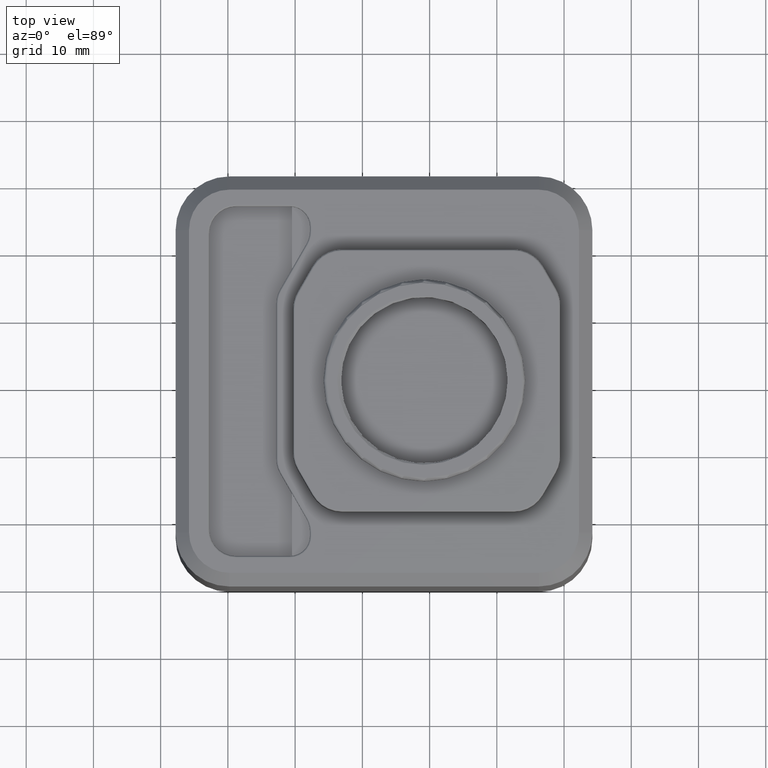
[diagram: clean part render]
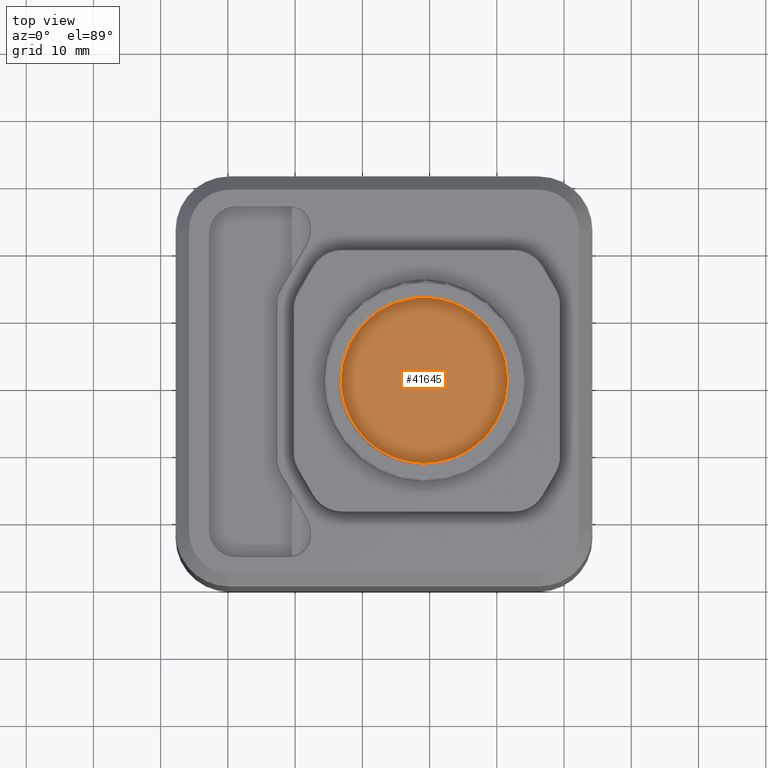
[diagram: same view with one face highlighted and labeled with its STEP entity id]
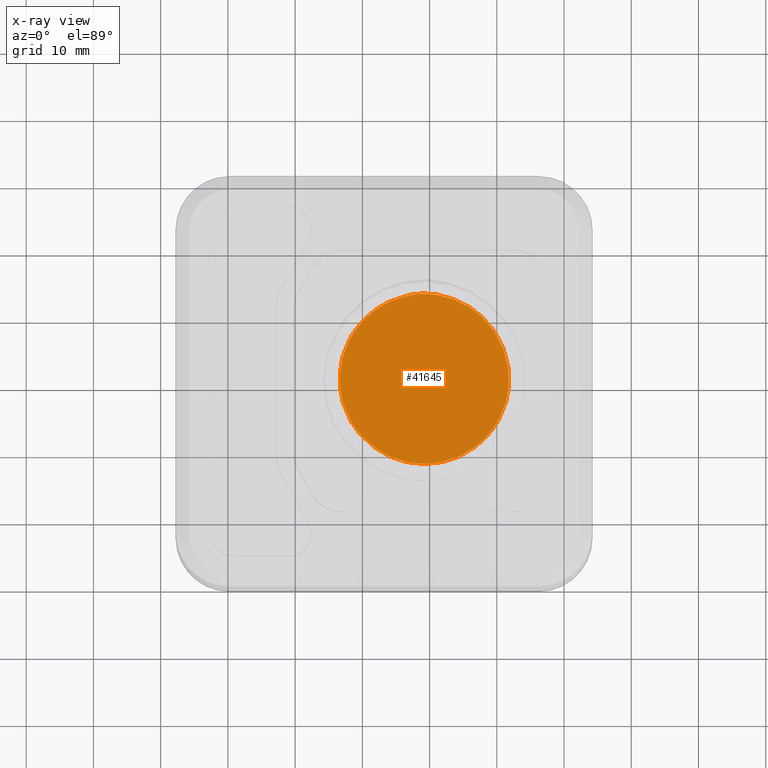
[diagram: x-ray of the same camera — body ghosted, the highlighted face saturated]
A machine part, top view. The second image highlights one B-rep face of the part: STEP entity #41645.
The next image is the same camera in x-ray: the body ghosted, the highlighted face saturated — about 0% of this face is hidden behind the body in this view.
In plain terms, the highlighted planar face has unit normal (0, 0, -1).
Its self-contained STEP definition (entity closure, byte-faithful):
#297 = CARTESIAN_POINT ( 'NONE',  ( 31.82309524711892479, 20.74519553702214480, 39.58307477415577580 ) ) ;
#442 = CARTESIAN_POINT ( 'NONE',  ( 15.31156045680476652, 32.63745013328001221, 39.58307532106147164 ) ) ;
#666 = CARTESIAN_POINT ( 'NONE',  ( 26.60642328397399581, 30.83139981985038958, 39.58307525200874011 ) ) ;
#813 = CARTESIAN_POINT ( 'NONE',  ( 11.81525791488999921, 30.81963189116436652, 39.58307532113814631 ) ) ;
#1029 = CARTESIAN_POINT ( 'NONE',  ( 26.56612655658900479, 30.86078092087142011, 39.58307288300546389 ) ) ;
#1396 = CARTESIAN_POINT ( 'NONE',  ( 28.10753219452592688, 29.54467523132464990, 39.58307532091844649 ) ) ;
#1761 = CARTESIAN_POINT ( 'NONE',  ( 30.20758540288496619, 14.40774100040227346, 39.58292846182003188 ) ) ;
#1988 = CARTESIAN_POINT ( 'NONE',  ( 10.29460534919478576, 11.70433916191642254, 39.58307480405398593 ) ) ;
#2117 = CARTESIAN_POINT ( 'NONE',  ( 28.21131358985558890, 11.77279022986245671, 39.58307529018049564 ) ) ;
#2352 = CARTESIAN_POINT ( 'NONE',  ( 10.54596359788703452, 11.46036815941908849, 39.58303727257135307 ) ) ;
#2479 = CARTESIAN_POINT ( 'NONE',  ( 31.76666478938085092, 19.32918123646492603, 39.58320884384016125 ) ) ;
#2714 = CARTESIAN_POINT ( 'NONE',  ( 7.409811808968974844, 16.17391672029135918, 39.58309431045019267 ) ) ;
#2839 = CARTESIAN_POINT ( 'NONE',  ( 31.81457887324661726, 19.98313738439653520, 39.58316871722408337 ) ) ;
#3069 = CARTESIAN_POINT ( 'NONE',  ( 10.32592943123403018, 11.67319117910058779, 39.58307325766346452 ) ) ;
#3197 = CARTESIAN_POINT ( 'NONE',  ( 29.01918773677619967, 12.66678435022230964, 39.58307349508761774 ) ) ;
#3424 = CARTESIAN_POINT ( 'NONE',  ( 9.995089806463630211, 29.19690334963930667, 39.58303949159650870 ) ) ;
#3788 = CARTESIAN_POINT ( 'NONE',  ( 6.634918845543139376, 19.82324906734761072, 39.58296970877445631 ) ) ;
#4163 = CARTESIAN_POINT ( 'NONE',  ( 8.092704202161462135, 26.52656563495869335, 39.58299219877280706 ) ) ;
#4377 = CARTESIAN_POINT ( 'NONE',  ( 21.31104860469303475, 33.11044855273399889, 39.58310714106016803 ) ) ;
#4527 = CARTESIAN_POINT ( 'NONE',  ( 10.20035638410481305, 29.41309134931121250, 39.58306791827434523 ) ) ;
#4748 = CARTESIAN_POINT ( 'NONE',  ( 23.07233300310424085, 32.65551039909874476, 39.58307536095276902 ) ) ;
#4898 = CARTESIAN_POINT ( 'NONE',  ( 6.613640315883956511, 20.49873097020358514, 39.58306921951251667 ) ) ;
#5259 = CARTESIAN_POINT ( 'NONE',  ( 14.08919259464977181, 32.15607290697079179, 39.58313495579482577 ) ) ;
#5479 = CARTESIAN_POINT ( 'NONE',  ( 27.83739389017142329, 29.80744547696908242, 39.58307464911715812 ) ) ;
#5846 = CARTESIAN_POINT ( 'NONE',  ( 31.17537669022870972, 24.57785075046471945, 39.58307544149712243 ) ) ;
#6212 = CARTESIAN_POINT ( 'NONE',  ( 31.81142067511956384, 21.15769332543612435, 39.58306534537268817 ) ) ;
#6230 = EDGE_CURVE ( 'NONE', #10511, #21820, #54524, .T. ) ;
#6579 = CARTESIAN_POINT ( 'NONE',  ( 31.18276629412035916, 24.55552531919031622, 39.58307536425727591 ) ) ;
#6943 = CARTESIAN_POINT ( 'NONE',  ( 27.54477263971208600, 30.07618911525520744, 39.58307375237176728 ) ) ;
#7673 = CARTESIAN_POINT ( 'NONE',  ( 31.45284595785293646, 17.53899976014077922, 39.58310721032420787 ) ) ;
#8032 = CARTESIAN_POINT ( 'NONE',  ( 31.72977658411369717, 19.00168308310927046, 39.58320369694176577 ) ) ;
#8266 = CARTESIAN_POINT ( 'NONE',  ( 8.230967841067396762, 14.40630142285107418, 39.58322380781584826 ) ) ;
#8388 = CARTESIAN_POINT ( 'NONE',  ( 29.44400130761310308, 13.22688428517006365, 39.58307532077753166 ) ) ;
#8750 = CARTESIAN_POINT ( 'NONE',  ( 30.40532723037687290, 14.76092432267649102, 39.58294046080446549 ) ) ;
#8988 = CARTESIAN_POINT ( 'NONE',  ( 9.019794884689645187, 28.00686190189832203, 39.58307507596298791 ) ) ;
#9346 = CARTESIAN_POINT ( 'NONE',  ( 6.648047268592817360, 21.71690228125390476, 39.58311057904569452 ) ) ;
#9703 = CARTESIAN_POINT ( 'NONE',  ( 9.815394610568599632, 29.00022564744404008, 39.58302961229944827 ) ) ;
#10077 = CARTESIAN_POINT ( 'NONE',  ( 9.037569764355167123, 28.03137315713833999, 39.58307532106050530 ) ) ;
#10298 = CARTESIAN_POINT ( 'NONE',  ( 22.94836137565558332, 32.69623070143412491, 39.58307593223423737 ) ) ;
#10453 = CARTESIAN_POINT ( 'NONE',  ( 7.191713895322981998, 24.35944694657575837, 39.58307606803374767 ) ) ;
#10511 = VERTEX_POINT ( 'NONE', #27889 ) ;
#10816 = CARTESIAN_POINT ( 'NONE',  ( 11.69408181897077448, 30.72974316925797567, 39.58307542881043162 ) ) ;
#11030 = CARTESIAN_POINT ( 'NONE',  ( 31.12312281429781891, 24.73235884423457165, 39.58307715316063735 ) ) ;
#11181 = CARTESIAN_POINT ( 'NONE',  ( 14.98230546478002978, 32.52146714464507937, 39.58308113075131729 ) ) ;
#11407 = CARTESIAN_POINT ( 'NONE',  ( 28.08855380643174016, 29.56362764466674875, 39.58307531352097897 ) ) ;
#11771 = CARTESIAN_POINT ( 'NONE',  ( 26.90263008108615850, 30.61432997450195970, 39.58307532931571160 ) ) ;
#12135 = CARTESIAN_POINT ( 'NONE',  ( 31.03133323159471857, 24.98883993486396804, 39.58308452307092296 ) ) ;
#12504 = CARTESIAN_POINT ( 'NONE',  ( 26.61018204957265709, 30.82864775228235033, 39.58307530373969740 ) ) ;
#12864 = CARTESIAN_POINT ( 'NONE',  ( 29.46088657371448249, 13.25023497609391043, 39.58307262058558251 ) ) ;
#13098 = CARTESIAN_POINT ( 'NONE',  ( 11.77644310657273863, 10.44360517564446056, 39.58307532111199833 ) ) ;
#13223 = CARTESIAN_POINT ( 'NONE',  ( 29.44852410332720893, 13.23312962030956719, 39.58307502148275603 ) ) ;
#13449 = CARTESIAN_POINT ( 'NONE',  ( 10.27216302084811161, 11.72677257270182594, 39.58307528412682075 ) ) ;
#13587 = CARTESIAN_POINT ( 'NONE',  ( 27.10754400862607483, 10.77639880498003677, 39.58310515801894525 ) ) ;
#13818 = CARTESIAN_POINT ( 'NONE',  ( 11.56876374146568409, 10.59378052697646844, 39.58307532111197702 ) ) ;
#13949 = CARTESIAN_POINT ( 'NONE',  ( 26.87238386275058133, 10.59624702462176415, 39.58307532111194149 ) ) ;
#14181 = CARTESIAN_POINT ( 'NONE',  ( 7.722514288602519983, 15.41282277622609698, 39.58315805270069632 ) ) ;
#14308 = CARTESIAN_POINT ( 'NONE',  ( 31.31044047124204610, 17.01867986314980286, 39.58307944589882510 ) ) ;
#14918 = CARTESIAN_POINT ( 'NONE',  ( 7.139722825615026913, 24.19082912164891752, 39.58307812244437685 ) ) ;
#15267 = CARTESIAN_POINT ( 'NONE',  ( 7.238424944617825041, 24.50512995734257160, 39.58307533879143847 ) ) ;
#15630 = CARTESIAN_POINT ( 'NONE',  ( 6.974046196721649160, 23.58123064582639827, 39.58309329796693277 ) ) ;
#16001 = CARTESIAN_POINT ( 'NONE',  ( 11.13557036194945837, 30.28596521814734643, 39.58307693236741898 ) ) ;
#16373 = CARTESIAN_POINT ( 'NONE',  ( 6.613506567561213245, 20.57059695941579491, 39.58307379895453693 ) ) ;
#16590 = CARTESIAN_POINT ( 'NONE',  ( 20.33053255652172098, 33.26266038202930986, 39.58310484845166854 ) ) ;
#16801 = FACE_OUTER_BOUND ( 'NONE', #36835, .T. ) ;
#16955 = CARTESIAN_POINT ( 'NONE',  ( 30.86336472355333882, 25.42115814484323977, 39.58310502893765204 ) ) ;
#17106 = CARTESIAN_POINT ( 'NONE',  ( 12.34525127646521803, 31.19071836639117379, 39.58314480628762055 ) ) ;
#17322 = CARTESIAN_POINT ( 'NONE',  ( 29.36280052962219500, 28.08255499423306389, 39.58307565287215368 ) ) ;
#17464 = CARTESIAN_POINT ( 'NONE',  ( 13.47601764711962247, 31.86338886953499383, 39.58317600619672305 ) ) ;
#17689 = CARTESIAN_POINT ( 'NONE',  ( 26.53185043186144654, 30.88560886062512267, 39.58306938511711337 ) ) ;
#18052 = CARTESIAN_POINT ( 'NONE',  ( 28.94892635330657527, 28.61738361766159855, 39.58310811847668731 ) ) ;
#18196 = CARTESIAN_POINT ( 'NONE',  ( 15.29750936800621375, 32.63269675156126937, 39.58307533692189395 ) ) ;
#18417 = CARTESIAN_POINT ( 'NONE',  ( 30.34530453044910558, 26.52606908020874599, 39.58315888820454376 ) ) ;
#18645 = CARTESIAN_POINT ( 'NONE',  ( 9.517804684481253830, 12.55142721232797420, 39.58307712759088304 ) ) ;
#18770 = CARTESIAN_POINT ( 'NONE',  ( 31.22710951478936181, 16.74984044170014030, 39.58307532558664832 ) ) ;
#19004 = CARTESIAN_POINT ( 'NONE',  ( 7.221098807882374793, 16.71729692346052687, 39.58307538568590900 ) ) ;
#19104 = DIRECTION ( 'NONE',  ( 1.000000000000000000, 0.000000000000000000, 0.000000000000000000 ) ) ;
#19134 = CARTESIAN_POINT ( 'NONE',  ( 29.23337808203606514, 12.93616841809036089, 39.58307531876519647 ) ) ;
#19363 = CARTESIAN_POINT ( 'NONE',  ( 9.079196069071466368, 13.11011172687367932, 39.58307544736749151 ) ) ;
#19497 = CARTESIAN_POINT ( 'NONE',  ( 28.43051564058886882, 11.99997599885538513, 39.58307456413299263 ) ) ;
#20088 = CARTESIAN_POINT ( 'NONE',  ( 8.709900398096213081, 13.63299514881732222, 39.58316057164426383 ) ) ;
#20453 = CARTESIAN_POINT ( 'NONE',  ( 10.52984923604159206, 29.74500220213409918, 39.58307531598766360 ) ) ;
#20816 = CARTESIAN_POINT ( 'NONE',  ( 6.626186381687364957, 19.98717145457402111, 39.58298641433502496 ) ) ;
#21165 = CARTESIAN_POINT ( 'NONE',  ( 7.218717429953849241, 24.44430085055771329, 39.58307551402681668 ) ) ;
#21524 = CARTESIAN_POINT ( 'NONE',  ( 10.25810466961057088, 29.47201999127088001, 39.58307346708770780 ) ) ;
#21820 = VERTEX_POINT ( 'NONE', #28861 ) ;
#21896 = CARTESIAN_POINT ( 'NONE',  ( 6.787967163575708618, 22.69508954390154543, 39.58311365389403136 ) ) ;
#22122 = CARTESIAN_POINT ( 'NONE',  ( 26.34702279738307240, 31.01689247633581559, 39.58304184543069226 ) ) ;
#22263 = CARTESIAN_POINT ( 'NONE',  ( 11.75665424146439975, 30.77639575516750625, 39.58307534893025093 ) ) ;
#22485 = CARTESIAN_POINT ( 'NONE',  ( 29.39286372209501863, 28.04141251319615336, 39.58307532726094990 ) ) ;
#22623 = CARTESIAN_POINT ( 'NONE',  ( 11.81925300681693614, 30.82256323303247214, 39.58307532109870408 ) ) ;
#22834 = CARTESIAN_POINT ( 'NONE',  ( 31.82367513995569652, 20.68994096519161729, 39.58307518159023175 ) ) ;
#22981 = CARTESIAN_POINT ( 'NONE',  ( 14.66740359006920968, 32.40133214601982559, 39.58309554180070222 ) ) ;
#23207 = CARTESIAN_POINT ( 'NONE',  ( 31.60412593130469006, 23.01622237786184400, 39.58303592736022836 ) ) ;
#23350 = CARTESIAN_POINT ( 'NONE',  ( 15.28476361968074748, 32.62837391962992228, 39.58307536555938810 ) ) ;
#23507 = EDGE_CURVE ( 'NONE', #53318, #10511, #58545, .T. ) ;
#23574 = CARTESIAN_POINT ( 'NONE',  ( 28.38837526865510696, 29.26346017786354992, 39.58307533349866958 ) ) ;
#23939 = CARTESIAN_POINT ( 'NONE',  ( 29.38039897812857859, 28.05850676991337878, 39.58307540518069345 ) ) ;
#24158 = CARTESIAN_POINT ( 'NONE',  ( 10.95199977589946982, 11.09361037933792105, 39.58301949489317906 ) ) ;
#24298 = CARTESIAN_POINT ( 'NONE',  ( 29.86894234455699859, 13.84394752154389785, 39.58295518404754887 ) ) ;
#24653 = CARTESIAN_POINT ( 'NONE',  ( 28.18816623086884121, 11.74945241940334562, 39.58307531265013779 ) ) ;
#24891 = CARTESIAN_POINT ( 'NONE',  ( 9.010085707129540822, 13.20435337183760360, 39.58307533041035242 ) ) ;
#25018 = CARTESIAN_POINT ( 'NONE',  ( 29.44437418975225995, 13.22739899078652392, 39.58307531641513322 ) ) ;
#25254 = CARTESIAN_POINT ( 'NONE',  ( 7.231722222232755293, 16.68454415190560880, 39.58307557658597631 ) ) ;
#25381 = CARTESIAN_POINT ( 'NONE',  ( 29.44604240021776320, 13.22970210593515894, 39.58307524602797400 ) ) ;
#25614 = CARTESIAN_POINT ( 'NONE',  ( 9.410930107588884042, 12.68114098891270380, 39.58307681133553046 ) ) ;
#25745 = CARTESIAN_POINT ( 'NONE',  ( 27.61352982754840824, 11.20085352608813167, 39.58313523613738738 ) ) ;
#25979 = CARTESIAN_POINT ( 'NONE',  ( 10.30835829189515884, 29.52276811143486412, 39.58307528807126374 ) ) ;
#26343 = CARTESIAN_POINT ( 'NONE',  ( 10.31347472030099333, 29.52790757226033946, 39.58307532119206940 ) ) ;
#26562 = CARTESIAN_POINT ( 'NONE',  ( 19.21886832694000447, 33.31178579707100340, 39.58307532111199833 ) ) ;
#26714 = CARTESIAN_POINT ( 'NONE',  ( 6.614209198863397532, 20.43726334727052674, 39.58306133714926744 ) ) ;
#26927 = CARTESIAN_POINT ( 'NONE',  ( 21.65346030913536524, 33.04441457014123529, 39.58310199617560698 ) ) ;
#27075 = CARTESIAN_POINT ( 'NONE',  ( 7.242404350098541777, 24.51731526628158164, 39.58307532473218515 ) ) ;
#27288 = CARTESIAN_POINT ( 'NONE',  ( 23.10194307992161455, 32.64560639571344325, 39.58307532466301382 ) ) ;
#27444 = CARTESIAN_POINT ( 'NONE',  ( 6.613706232642266869, 20.63867874470970065, 39.58307532118353578 ) ) ;
#27822 = CARTESIAN_POINT ( 'NONE',  ( 11.78815014909529424, 30.79968709791635817, 39.58307532788702332 ) ) ;
#27889 = CARTESIAN_POINT ( 'NONE',  ( 11.77644310657273863, 10.44360517564446056, 39.58307532111199833 ) ) ;
#28044 = CARTESIAN_POINT ( 'NONE',  ( 26.50585216565325553, 30.90432980653872974, 39.58306599358019184 ) ) ;
#28186 = CARTESIAN_POINT ( 'NONE',  ( 11.80395060614210045, 30.81132373204940933, 39.58307532263554407 ) ) ;
#28412 = CARTESIAN_POINT ( 'NONE',  ( 31.81857870264023802, 20.95621624022203022, 39.58307087566106475 ) ) ;
#28556 = CARTESIAN_POINT ( 'NONE',  ( 11.88802138242474982, 30.87300141750717586, 39.58307532281163077 ) ) ;
#28769 = CARTESIAN_POINT ( 'NONE',  ( 29.04815612476993181, 28.49452757546854542, 39.58309799552145591 ) ) ;
#28819 = AXIS2_PLACEMENT_3D ( 'NONE', #62995, #62633, #68567 ) ;
#28861 = CARTESIAN_POINT ( 'NONE',  ( 19.21886832694000447, 33.31178579707100340, 39.58307532111199833 ) ) ;
#28914 = CARTESIAN_POINT ( 'NONE',  ( 15.19616618214755732, 32.59796473236040271, 39.58307601863126735 ) ) ;
#29135 = CARTESIAN_POINT ( 'NONE',  ( 31.82402204924120070, 20.64034035032357295, 39.58307532117703431 ) ) ;
#29277 = CARTESIAN_POINT ( 'NONE',  ( 11.57060933075219111, 30.63617742455695137, 39.58307570683936660 ) ) ;
#29496 = CARTESIAN_POINT ( 'NONE',  ( 26.58208400413531436, 30.84917993058941477, 39.58307423568739836 ) ) ;
#29713 = CARTESIAN_POINT ( 'NONE',  ( 10.44101052665709162, 11.56074402843962723, 39.58305570087678404 ) ) ;
#30077 = CARTESIAN_POINT ( 'NONE',  ( 10.28114471364495053, 11.71778612522995111, 39.58307513635006814 ) ) ;
#30218 = CARTESIAN_POINT ( 'NONE',  ( 28.59067848553757685, 12.17261400609130106, 39.58307389994791947 ) ) ;
#30566 = CARTESIAN_POINT ( 'NONE',  ( 31.22508703291624599, 16.74353602935297758, 39.58307532116968730 ) ) ;
#30804 = CARTESIAN_POINT ( 'NONE',  ( 7.296226611588640942, 16.49108544908258978, 39.58307917037939205 ) ) ;
#31292 = CARTESIAN_POINT ( 'NONE',  ( 30.81746189559023819, 15.62784378352658265, 39.58301154184568560 ) ) ;
#31523 = CARTESIAN_POINT ( 'NONE',  ( 9.030016256578216272, 28.02096930592452040, 39.58307525921392056 ) ) ;
#31735 = CARTESIAN_POINT ( 'NONE',  ( 23.03093879989528858, 32.66924030919294353, 39.58307547847207530 ) ) ;
#31881 = CARTESIAN_POINT ( 'NONE',  ( 6.613572718026945907, 20.60656748458656295, 39.58307494122811221 ) ) ;
#32238 = CARTESIAN_POINT ( 'NONE',  ( 8.955211661525355638, 27.91692169207108520, 39.58307160120293844 ) ) ;
#32616 = CARTESIAN_POINT ( 'NONE',  ( 7.020422447281273293, 23.76582188107846960, 39.58308785037899469 ) ) ;
#32826 = CARTESIAN_POINT ( 'NONE',  ( 23.09305617026649315, 32.64858646587202884, 39.58307533109551457 ) ) ;
#32979 = CARTESIAN_POINT ( 'NONE',  ( 7.243952362116075072, 24.52204680418867611, 39.58307532115944838 ) ) ;
#33195 = CARTESIAN_POINT ( 'NONE',  ( 26.09311517766933974, 31.19028617721217245, 39.58300512935375792 ) ) ;
#33564 = CARTESIAN_POINT ( 'NONE',  ( 31.18768526709300559, 24.54061763242963679, 39.58307532978744092 ) ) ;
#33719 = CARTESIAN_POINT ( 'NONE',  ( 15.30601500690466032, 32.63557655548080305, 39.58307532420786146 ) ) ;
#33937 = CARTESIAN_POINT ( 'NONE',  ( 31.80434157556499031, 21.29694286032885842, 39.58306058149907614 ) ) ;
#34305 = CARTESIAN_POINT ( 'NONE',  ( 31.19059185623843788, 24.53177688770876586, 39.58307532107254900 ) ) ;
#34446 = CARTESIAN_POINT ( 'NONE',  ( 19.21886832694000447, 33.31178579707100340, 39.58307532111199833 ) ) ;
#34662 = CARTESIAN_POINT ( 'NONE',  ( 31.09270574957545463, 24.81862438055747333, 39.58307929118409874 ) ) ;
#34953 = ORIENTED_EDGE ( 'NONE', *, *, #6230, .F. ) ;
#35028 = CARTESIAN_POINT ( 'NONE',  ( 28.10520883400597825, 29.54699802759533966, 39.58307532033472853 ) ) ;
#35397 = CARTESIAN_POINT ( 'NONE',  ( 31.26807883700689317, 16.87972048781893619, 39.58307638572934195 ) ) ;
#35622 = CARTESIAN_POINT ( 'NONE',  ( 8.910552090064223663, 13.34085093283886181, 39.58309915735519269 ) ) ;
#35641 = B_SPLINE_CURVE_WITH_KNOTS ( 'NONE', 3,
 ( #26562, #66145, #16590, #4377, #26927, #43213, #72065, #38743, #43939, #10298, #31735, #4748, #32826, #27288, #49851, #72434, #44313, #66877, #61319, #55776, #72814, #33195, #22122, #44677, #28044, #17689, #1029, #29496, #62427, #666, #12504, #62060, #57607, #73172, #11771, #68723, #6943, #68360, #5479, #52050, #46146, #40214, #11407, #50590, #35028, #1396, #23574, #67620, #18052, #28769, #67994, #40579, #63151, #17322, #23939, #61694, #22485, #45039, #46507, #69084, #18417, #56878, #62788, #16955, #39852, #12135, #34662, #11030, #56518, #5846, #6579, #33564, #34305, #57236, #23207, #39472, #56156, #33937, #6212, #28412, #50952, #297, #22834, #45407, #51320, #45784, #29135, #51682, #2839, #2479, #8032, #64242, #47585, #7673, #69816, #52773, #14308, #35397, #42039, #53492, #58689, #18770, #36833, #70533, #30566, #41312, #31292, #8750, #1761, #24298, #40949, #46870, #53863, #58322, #35755, #12864, #59407, #13223, #25381, #47230, #25018, #53133, #8388, #70171, #19134, #3197, #63876, #30218, #19497, #69447, #59045, #2117, #24653, #41672, #47951, #63507, #64611, #25745, #13587, #13949, #36471 ),
 .UNSPECIFIED., .F., .F.,
 ( 4, 2, 2, 2, 1, 1, 1, 1, 1, 2, 2, 2, 2, 2, 2, 2, 1, 1, 1, 1, 2, 2, 2, 2, 1, 1, 1, 1, 2, 2, 2, 2, 1, 1, 1, 1, 2, 2, 2, 2, 2, 2, 1, 1, 1, 2, 2, 2, 2, 2, 1, 1, 1, 1, 2, 2, 2, 2, 2, 2, 1, 1, 1, 1, 1, 1, 2, 2, 2, 2, 2, 2, 2, 1, 1, 1, 1, 1, 2, 2, 2, 2, 1, 1, 1, 1, 2, 2, 2, 4 ),
 ( 0.000000000000000000, 0.06249999999977309817, 0.09374999999965948072, 0.1093749999996026095, 0.1171874999995743127, 0.1210937499995602129, 0.1230468749995532046, 0.1240234374995498184, 0.1245117187495480143, 0.1247558593745472372, 0.1249999999995464461, 0.1562499999994464428, 0.1874999999993464950, 0.2187499999992461586, 0.2343749999991958655, 0.2421874999991712463, 0.2460937499991593114, 0.2480468749991533439, 0.2490234374991512345, 0.2495117187491506794, 0.2497558593741509292, 0.2499999999991511790, 0.2812499999992043587, 0.2968749999992310595, 0.3046874999992442712, 0.3085937499992510435, 0.3105468749992543742, 0.3115234374992561506, 0.3120117187492569277, 0.3124999999992577049, 0.3437499999993143818, 0.3593749999993425814, 0.3671874999993564037, 0.3710937499993633426, 0.3730468749993666178, 0.3740234374993683386, 0.3745117187493691713, 0.3749999999993700039, 0.4374999999995173305, 0.4687499999995908828, 0.4843749999996277977, 0.4921874999996463940, 0.4960937499996556643, 0.4980468749996602162, 0.4990234374996624922, 0.4995117187496635469, 0.4999999999996646016, 0.5624999999998131495, 0.5937499999998873124, 0.6093749999999241718, 0.6171874999999427125, 0.6210937499999519273, 0.6230468749999563682, 0.6240234374999585887, 0.6245117187499596989, 0.6249999999999608091, 0.6562500000000240918, 0.6875000000000872635, 0.7187500000001504352, 0.7343750000001818545, 0.7421875000001975087, 0.7460937500002057243, 0.7480468750002099432, 0.7490234375002119416, 0.7495117187502128298, 0.7497558593752131628, 0.7498779296877132738, 0.7500000000002133849, 0.7812500000002716716, 0.8125000000003300693, 0.8437500000003884670, 0.8593750000004176659, 0.8671875000004325429, 0.8710937500004398704, 0.8730468750004430900, 0.8740234375004447553, 0.8745117187504455325, 0.8747558593754468648, 0.8748779296879465317, 0.8750000000004461986, 0.9062500000003346212, 0.9218750000002789990, 0.9296875000002511324, 0.9335937500002371436, 0.9355468750002301492, 0.9365234375002264855, 0.9370117187502248202, 0.9375000000002231548, 0.9687500000001115774, 1.000000000000000000 ),
 .UNSPECIFIED. ) ;
#35755 = CARTESIAN_POINT ( 'NONE',  ( 29.47591802665061778, 13.27110254008232992, 39.58306867331585011 ) ) ;
#35985 = CARTESIAN_POINT ( 'NONE',  ( 8.032736965221035419, 14.76014136484462469, 39.58321192360969576 ) ) ;
#36347 = CARTESIAN_POINT ( 'NONE',  ( 8.988738925493411358, 13.23378577088604402, 39.58307532121703076 ) ) ;
#36471 = CARTESIAN_POINT ( 'NONE',  ( 26.66129354729435263, 10.44360517563495172, 39.58307532111199833 ) ) ;
#36706 = CARTESIAN_POINT ( 'NONE',  ( 7.461341645905831044, 16.03915906594859209, 39.58310389023919384 ) ) ;
#36833 = CARTESIAN_POINT ( 'NONE',  ( 31.22592107583507470, 16.74613536870640473, 39.58307532275657081 ) ) ;
#36835 = EDGE_LOOP ( 'NONE', ( #34953, #58672, #64549 ) ) ;
#37067 = CARTESIAN_POINT ( 'NONE',  ( 8.970897944895657616, 13.25845863074093067, 39.58307532045459709 ) ) ;
#37439 = CARTESIAN_POINT ( 'NONE',  ( 6.857356919705007492, 18.02464946085741815, 39.58299521642065599 ) ) ;
#37794 = CARTESIAN_POINT ( 'NONE',  ( 9.702766867412965013, 28.87145226196319570, 39.58303245208318089 ) ) ;
#38148 = CARTESIAN_POINT ( 'NONE',  ( 8.568313380315355943, 27.34286289382200863, 39.58301943606122109 ) ) ;
#38531 = CARTESIAN_POINT ( 'NONE',  ( 11.46762419758318075, 30.55559624255717566, 39.58307604275209712 ) ) ;
#38743 = CARTESIAN_POINT ( 'NONE',  ( 22.64479360051887369, 32.78990998986673588, 39.58308007752339819 ) ) ;
#38893 = CARTESIAN_POINT ( 'NONE',  ( 8.998884330225658701, 27.97789289461041307, 39.58307435769418703 ) ) ;
#39472 = CARTESIAN_POINT ( 'NONE',  ( 31.74373281528224666, 22.03715695638609873, 39.58303899807761894 ) ) ;
#39624 = CARTESIAN_POINT ( 'NONE',  ( 14.79076744519862174, 32.44980035808045926, 39.58308871340112489 ) ) ;
#39852 = CARTESIAN_POINT ( 'NONE',  ( 30.98970114940534160, 25.09922864103557316, 39.58308927327116322 ) ) ;
#40214 = CARTESIAN_POINT ( 'NONE',  ( 28.06513465910893501, 29.58692395519384988, 39.58307529349529119 ) ) ;
#40355 = CARTESIAN_POINT ( 'NONE',  ( 12.00512757952365916, 30.95844174691999839, 39.58309640945210361 ) ) ;
#40579 = CARTESIAN_POINT ( 'NONE',  ( 29.25351955909790647, 28.22966929993846463, 39.58308024732946961 ) ) ;
#40949 = CARTESIAN_POINT ( 'NONE',  ( 29.72790439191083678, 13.63304304527598987, 39.58299052001498097 ) ) ;
#41312 = CARTESIAN_POINT ( 'NONE',  ( 31.03185210517433745, 16.14207463169883638, 39.58307530634648685 ) ) ;
#41541 = CARTESIAN_POINT ( 'NONE',  ( 7.213534343524981018, 16.74078144379199529, 39.58307532694578157 ) ) ;
#41645 = ADVANCED_FACE ( 'NONE', ( #16801 ), #45990, .F. ) ;
#41672 = CARTESIAN_POINT ( 'NONE',  ( 28.17825205717899806, 11.73949028199811728, 39.58307531783733424 ) ) ;
#41902 = CARTESIAN_POINT ( 'NONE',  ( 10.40583505209625059, 11.59477547704044298, 39.58306363605477429 ) ) ;
#42039 = CARTESIAN_POINT ( 'NONE',  ( 31.24637941412126452, 16.81040266161742736, 39.58307559208699189 ) ) ;
#42261 = CARTESIAN_POINT ( 'NONE',  ( 10.61510557155760281, 11.39580745628044056, 39.58302947225107715 ) ) ;
#42359 = CARTESIAN_POINT ( 'NONE',  ( 19.21886832694000091, 20.36178579707100056, 39.58307532111199833 ) ) ;
#42627 = CARTESIAN_POINT ( 'NONE',  ( 8.992842386649295250, 13.22811608155506669, 39.58307532187934896 ) ) ;
#42997 = CARTESIAN_POINT ( 'NONE',  ( 10.76055586348604542, 29.96146383052182571, 39.58307688311540318 ) ) ;
#43213 = CARTESIAN_POINT ( 'NONE',  ( 22.18720763652172678, 32.91649749577062067, 39.58309013603639670 ) ) ;
#43360 = CARTESIAN_POINT ( 'NONE',  ( 10.28733481556238161, 29.50159698384411655, 39.58307485718211183 ) ) ;
#43708 = CARTESIAN_POINT ( 'NONE',  ( 26.66129354729435263, 10.44360517563495172, 39.58307532111199833 ) ) ;
#43724 = CARTESIAN_POINT ( 'NONE',  ( 7.232474212601651686, 24.48686139032423625, 39.58307537022551514 ) ) ;
#43939 = CARTESIAN_POINT ( 'NONE',  ( 22.78406980714690988, 32.74835304939082192, 39.58307761795111190 ) ) ;
#44084 = CARTESIAN_POINT ( 'NONE',  ( 7.403188549543954444, 25.00715162539951564, 39.58307531807552238 ) ) ;
#44313 = CARTESIAN_POINT ( 'NONE',  ( 23.66234213597950387, 32.45700941498787984, 39.58307532391639683 ) ) ;
#44460 = CARTESIAN_POINT ( 'NONE',  ( 6.707725258303790739, 19.00361375814410536, 39.58294445876657619 ) ) ;
#44677 = CARTESIAN_POINT ( 'NONE',  ( 26.41824100593980518, 30.96680588385732946, 39.58305343057300973 ) ) ;
#45039 = CARTESIAN_POINT ( 'NONE',  ( 29.39640003927773293, 28.03655305896683814, 39.58307532114134375 ) ) ;
#45407 = CARTESIAN_POINT ( 'NONE',  ( 31.82388691006815407, 20.66251634999524001, 39.58307528601191905 ) ) ;
#45784 = CARTESIAN_POINT ( 'NONE',  ( 31.82400701893322292, 20.64300937166162697, 39.58307531865094830 ) ) ;
#45990 = PLANE ( 'NONE',  #28819 ) ;
#46146 = CARTESIAN_POINT ( 'NONE',  ( 28.01793479926990571, 29.63356725974625050, 39.58307522004583490 ) ) ;
#46285 = CARTESIAN_POINT ( 'NONE',  ( 18.69719126484554295, 33.30336335000791337, 39.58307532111198412 ) ) ;
#46507 = CARTESIAN_POINT ( 'NONE',  ( 29.58004016946677339, 27.78401667089880789, 39.58307531735728446 ) ) ;
#46737 = CARTESIAN_POINT ( 'NONE',  ( 10.81959647637351907, 11.20899304887804426, 39.58301578511080265 ) ) ;
#46870 = CARTESIAN_POINT ( 'NONE',  ( 29.57553454095944190, 13.41127279176310871, 39.58303622011505496 ) ) ;
#47101 = CARTESIAN_POINT ( 'NONE',  ( 10.05230098133436734, 11.94742497792276303, 39.58307531989328254 ) ) ;
#47230 = CARTESIAN_POINT ( 'NONE',  ( 29.44491186465604571, 13.22814122509234380, 39.58307530232411864 ) ) ;
#47455 = CARTESIAN_POINT ( 'NONE',  ( 8.990380241549845053, 13.23151750901937440, 39.58307532143641794 ) ) ;
#47585 = CARTESIAN_POINT ( 'NONE',  ( 31.56683281194291979, 18.02328308590524486, 39.58314301155178327 ) ) ;
#47815 = CARTESIAN_POINT ( 'NONE',  ( 9.251301087286105229, 12.88340702450200403, 39.58307613731378183 ) ) ;
#47951 = CARTESIAN_POINT ( 'NONE',  ( 28.17164398899937794, 11.73285768310196175, 39.58307532026168474 ) ) ;
#48174 = CARTESIAN_POINT ( 'NONE',  ( 9.033098548344852929, 13.17279574385990948, 39.58307535548178180 ) ) ;
#48535 = CARTESIAN_POINT ( 'NONE',  ( 8.767749916126458487, 27.64615113757109555, 39.58304757589664291 ) ) ;
#48900 = CARTESIAN_POINT ( 'NONE',  ( 11.26539666581730081, 30.39409069293344245, 39.58307664675474058 ) ) ;
#49267 = CARTESIAN_POINT ( 'NONE',  ( 6.850190739366861514, 23.03970308817184076, 39.58310757256257517 ) ) ;
#49634 = CARTESIAN_POINT ( 'NONE',  ( 8.829668325699135067, 27.73719081254657226, 39.58305686885783814 ) ) ;
#49851 = CARTESIAN_POINT ( 'NONE',  ( 23.10786891650115749, 32.64361686312062716, 39.58307532180786126 ) ) ;
#50000 = CARTESIAN_POINT ( 'NONE',  ( 7.919875263730018489, 26.19499780751306517, 39.58300283082647297 ) ) ;
#50590 = CARTESIAN_POINT ( 'NONE',  ( 28.09855196426154222, 29.55364911569695607, 39.58307531815989933 ) ) ;
#50952 = CARTESIAN_POINT ( 'NONE',  ( 31.82129169671466684, 20.85732593889446562, 39.58307322973855236 ) ) ;
#50975 = EDGE_CURVE ( 'NONE', #21820, #53318, #35641, .T. ) ;
#51320 = CARTESIAN_POINT ( 'NONE',  ( 31.82396116032883171, 20.65080637254060036, 39.58307530860831491 ) ) ;
#51682 = CARTESIAN_POINT ( 'NONE',  ( 31.82567171031470110, 20.30796262335340785, 39.58307531694913450 ) ) ;
#51826 = CARTESIAN_POINT ( 'NONE',  ( 16.07559548633949831, 32.89524373276033486, 39.58307533404650513 ) ) ;
#52050 = CARTESIAN_POINT ( 'NONE',  ( 27.92207995074781834, 29.72704347875204078, 39.58307496564293615 ) ) ;
#52274 = CARTESIAN_POINT ( 'NONE',  ( 9.171658296888708151, 12.98646318246400000, 39.58307576149924500 ) ) ;
#52645 = CARTESIAN_POINT ( 'NONE',  ( 8.998588583985894118, 13.22018617356374826, 39.58307532370001525 ) ) ;
#52773 = CARTESIAN_POINT ( 'NONE',  ( 31.34496457794732649, 17.13831604759635496, 39.58308430877909956 ) ) ;
#53001 = CARTESIAN_POINT ( 'NONE',  ( 10.35263200094964553, 11.64688185190382086, 39.58307062209392058 ) ) ;
#53133 = CARTESIAN_POINT ( 'NONE',  ( 29.44414967182122922, 13.22708907607479567, 39.58307531943547275 ) ) ;
#53318 = VERTEX_POINT ( 'NONE', #43708 ) ;
#53365 = CARTESIAN_POINT ( 'NONE',  ( 8.987161061298447606, 13.23596748395845424, 39.58307532111457050 ) ) ;
#53492 = CARTESIAN_POINT ( 'NONE',  ( 31.23540034290162382, 16.77578518854951284, 39.58307538977812357 ) ) ;
#53727 = CARTESIAN_POINT ( 'NONE',  ( 11.33417872525847869, 10.77316081075587029, 39.58304356057225704 ) ) ;
#53863 = CARTESIAN_POINT ( 'NONE',  ( 29.53448371814548423, 13.35315898049461047, 39.58305012138047374 ) ) ;
#54093 = CARTESIAN_POINT ( 'NONE',  ( 9.034346466382636720, 28.02693474431027454, 39.58307529890731757 ) ) ;
#54457 = CARTESIAN_POINT ( 'NONE',  ( 10.29993865712086354, 29.51429653120311158, 39.58307515549206812 ) ) ;
#54524 = B_SPLINE_CURVE_WITH_KNOTS ( 'NONE', 3,
 ( #13098, #13818, #53727, #24158, #46737, #42261, #2352, #29713, #41902, #53001, #3069, #1988, #30077, #13449, #69683, #47101, #70046, #18645, #25614, #47815, #52274, #19363, #48174, #24891, #52645, #42627, #47455, #36347, #53365, #37067, #35622, #20088, #64478, #8266, #35985, #14181, #69316, #36706, #2714, #63742, #30804, #58194, #25254, #19004, #59278, #41541, #58554, #72584, #61107, #37439, #44460, #65929, #3788, #20816, #66286, #60009, #26714, #4898, #16373, #31881, #55560, #71845, #27444, #54820, #9346, #21896, #49267, #15630, #32616, #67029, #14918, #10453, #21165, #43724, #15267, #27075, #32979, #44084, #55190, #50000, #4163, #71113, #38148, #48535, #49634, #60730, #32238, #38893, #8988, #31523, #54093, #65568, #10077, #71479, #72212, #37794, #9703, #3424, #66650, #60363, #4527, #21524, #43360, #54457, #25979, #26343, #20453, #42997, #16001, #48900, #38531, #29277, #10816, #22263, #27822, #28186, #55926, #813, #22623, #28556, #40355, #17106, #67768, #67407, #17464, #5259, #61475, #22981, #39624, #11181, #72954, #28914, #57391, #23350, #18196, #33719, #442, #51826, #57023, #62207, #46285, #34446 ),
 .UNSPECIFIED., .F., .F.,
 ( 4, 2, 2, 2, 2, 1, 1, 2, 2, 2, 2, 1, 1, 1, 1, 1, 1, 2, 2, 2, 2, 2, 2, 2, 1, 1, 1, 1, 1, 2, 2, 2, 2, 2, 2, 1, 1, 1, 2, 2, 2, 2, 2, 1, 1, 1, 1, 2, 2, 2, 2, 2, 2, 1, 1, 1, 1, 2, 2, 2, 2, 2, 1, 1, 1, 2, 2, 2, 2, 1, 1, 1, 1, 1, 2, 2, 2, 2, 2, 2, 2, 1, 1, 1, 1, 2, 2, 2, 4 ),
 ( 0.000000000000000000, 0.03125000000024829444, 0.04687500000037255615, 0.05468750000043473558, 0.05859375000046573162, 0.06054687500048123311, 0.06152343750048902549, 0.06201171875049292515, 0.06250000000049682480, 0.09375000000075424389, 0.1093750000008829465, 0.1171875000009473117, 0.1210937500009794526, 0.1230468750009955786, 0.1240234375010037526, 0.1245117187510077911, 0.1247558593760098172, 0.1248779296885108303, 0.1250000000010118295, 0.1562500000009148238, 0.1875000000008177903, 0.2187500000007207845, 0.2343750000006723233, 0.2421875000006481204, 0.2460937500006359913, 0.2480468750006299128, 0.2490234375006268597, 0.2495117187506252499, 0.2497558593756243617, 0.2498779296881240009, 0.2500000000006236123, 0.3125000000005013212, 0.3437500000004401479, 0.3593750000004095613, 0.3671875000003940737, 0.3710937500003863576, 0.3730468750003823608, 0.3740234375003805289, 0.3745117187503797518, 0.3750000000003789191, 0.4375000000002807199, 0.4687500000002316480, 0.4843750000002070011, 0.4921875000001947886, 0.4960937500001886824, 0.4980468750001857403, 0.4990234375001842970, 0.4995117187501836864, 0.5000000000001830758, 0.5312500000001432188, 0.5625000000001034728, 0.5937500000000636158, 0.6093750000000436318, 0.6171875000000336398, 0.6210937500000288658, 0.6230468750000266454, 0.6240234375000257572, 0.6245117187500250910, 0.6250000000000244249, 0.6562499999999854561, 0.6718749999999661382, 0.6796874999999568123, 0.6835937499999520384, 0.6855468749999499289, 0.6865234374999488187, 0.6870117187499482636, 0.6874999999999477085, 0.7187499999998970823, 0.7343749999998717692, 0.7421874999998592237, 0.7460937499998530065, 0.7480468749998500089, 0.7490234374998485656, 0.7495117187498478994, 0.7497558593748474554, 0.7499999999998470113, 0.7812499999998692157, 0.8124999999998913092, 0.8437499999999131806, 0.8593749999999241718, 0.8671874999999296119, 0.8710937499999323874, 0.8730468749999336087, 0.8740234374999342748, 0.8745117187499346079, 0.8747558593749348299, 0.8749999999999349409, 0.9374999999999674705, 1.000000000000000000 ),
 .UNSPECIFIED. ) ;
#54820 = CARTESIAN_POINT ( 'NONE',  ( 6.616482616501279779, 21.13970667481122234, 39.58307531195590911 ) ) ;
#55190 = CARTESIAN_POINT ( 'NONE',  ( 7.575106377213809417, 25.43536393842737553, 39.58304372522368908 ) ) ;
#55560 = CARTESIAN_POINT ( 'NONE',  ( 6.613629630758628863, 20.62199136838317415, 39.58307518561604610 ) ) ;
#55776 = CARTESIAN_POINT ( 'NONE',  ( 25.30431984611146135, 31.67381116394790652, 39.58296163213962870 ) ) ;
#55926 = CARTESIAN_POINT ( 'NONE',  ( 11.81073348963317571, 30.81630889217673186, 39.58307532157442665 ) ) ;
#56156 = CARTESIAN_POINT ( 'NONE',  ( 31.77468983932170588, 21.72932669525017246, 39.58304687533731681 ) ) ;
#56518 = CARTESIAN_POINT ( 'NONE',  ( 31.15805756838240370, 24.62969065411270009, 39.58307579505904528 ) ) ;
#56878 = CARTESIAN_POINT ( 'NONE',  ( 30.51834028922559483, 26.19407366473867427, 39.58314821167451925 ) ) ;
#57023 = CARTESIAN_POINT ( 'NONE',  ( 16.79471696350095655, 33.05872728337341471, 39.58304236079391103 ) ) ;
#57236 = CARTESIAN_POINT ( 'NONE',  ( 31.44874375289357360, 23.74448510390586975, 39.58307532616284874 ) ) ;
#57391 = CARTESIAN_POINT ( 'NONE',  ( 15.25511251161881532, 32.61826568399519033, 39.58307549826201921 ) ) ;
#57607 = CARTESIAN_POINT ( 'NONE',  ( 26.61281531787757615, 30.82671873895005632, 39.58307531984582539 ) ) ;
#58194 = CARTESIAN_POINT ( 'NONE',  ( 7.253081392339176148, 16.61947540400668544, 39.58307632257098874 ) ) ;
#58322 = CARTESIAN_POINT ( 'NONE',  ( 29.48860236483103492, 13.28876600603256364, 39.58306479572194547 ) ) ;
#58545 = CIRCLE ( 'NONE', #66795, 12.39999999999999858 ) ;
#58554 = CARTESIAN_POINT ( 'NONE',  ( 7.212023606184577496, 16.74548640557662793, 39.58307532229655124 ) ) ;
#58672 = ORIENTED_EDGE ( 'NONE', *, *, #23507, .F. ) ;
#58689 = CARTESIAN_POINT ( 'NONE',  ( 31.22987850475847793, 16.75848693359922237, 39.58307533855360560 ) ) ;
#59045 = CARTESIAN_POINT ( 'NONE',  ( 28.25766374194989794, 11.81983833781662518, 39.58307520760009623 ) ) ;
#59278 = CARTESIAN_POINT ( 'NONE',  ( 7.215801496828799344, 16.73372789987518416, 39.58307533737438888 ) ) ;
#59407 = CARTESIAN_POINT ( 'NONE',  ( 29.45436905822869278, 13.24120857337189072, 39.58307412900871469 ) ) ;
#60009 = CARTESIAN_POINT ( 'NONE',  ( 6.615947584237131807, 20.31451202291128055, 39.58304023652105030 ) ) ;
#60363 = CARTESIAN_POINT ( 'NONE',  ( 10.15206370261757662, 29.36298114791151548, 39.58305852424996374 ) ) ;
#60730 = CARTESIAN_POINT ( 'NONE',  ( 8.914673283463921294, 27.85940338697803753, 39.58306728015399756 ) ) ;
#61107 = CARTESIAN_POINT ( 'NONE',  ( 7.009265798747271070, 17.37822665776480591, 39.58307531802738310 ) ) ;
#61319 = CARTESIAN_POINT ( 'NONE',  ( 24.96102646321154594, 31.86382304859462877, 39.58297319649509660 ) ) ;
#61475 = CARTESIAN_POINT ( 'NONE',  ( 14.31017584729694292, 32.25494581632467117, 39.58311787386294611 ) ) ;
#61694 = CARTESIAN_POINT ( 'NONE',  ( 29.38788526119191502, 28.04824433471781120, 39.58307535131444865 ) ) ;
#62060 = CARTESIAN_POINT ( 'NONE',  ( 26.61176564913401776, 30.82748774888708709, 39.58307531488072328 ) ) ;
#62207 = CARTESIAN_POINT ( 'NONE',  ( 18.10528733151976510, 33.26254787127668777, 39.58304546036699634 ) ) ;
#62427 = CARTESIAN_POINT ( 'NONE',  ( 26.59865075072213614, 30.83708531121831697, 39.58307504656693254 ) ) ;
#62633 = DIRECTION ( 'NONE',  ( 0.000000000000000000, 0.000000000000000000, -1.000000000000000000 ) ) ;
#62788 = CARTESIAN_POINT ( 'NONE',  ( 30.77723396600771721, 25.62345051306125043, 39.58311737614174319 ) ) ;
#62995 = CARTESIAN_POINT ( 'NONE',  ( 7.218868326939999136, 31.86178579707099701, 39.58307532111199833 ) ) ;
#63151 = CARTESIAN_POINT ( 'NONE',  ( 29.32707931084708619, 28.13105855851951276, 39.58307661602052718 ) ) ;
#63507 = CARTESIAN_POINT ( 'NONE',  ( 28.16944525649553199, 11.73065202575137533, 39.58307532090521619 ) ) ;
#63742 = CARTESIAN_POINT ( 'NONE',  ( 7.333863354765854936, 16.38403314967436231, 39.58308359902645890 ) ) ;
#63876 = CARTESIAN_POINT ( 'NONE',  ( 28.69782356336646245, 12.29244617239386805, 39.58307354963872626 ) ) ;
#64242 = CARTESIAN_POINT ( 'NONE',  ( 31.62986090542729301, 18.34873240791214855, 39.58317076710542892 ) ) ;
#64478 = CARTESIAN_POINT ( 'NONE',  ( 8.569478953458276038, 13.84287905963402387, 39.58319639547384838 ) ) ;
#64549 = ORIENTED_EDGE ( 'NONE', *, *, #50975, .F. ) ;
#64611 = CARTESIAN_POINT ( 'NONE',  ( 27.88297373762726039, 11.44376090033197890, 39.58307533434683734 ) ) ;
#65568 = CARTESIAN_POINT ( 'NONE',  ( 9.037222049837724924, 28.03089381756165821, 39.58307531661063194 ) ) ;
#65929 = CARTESIAN_POINT ( 'NONE',  ( 6.670825802735305565, 19.33147443224707729, 39.58293899307477659 ) ) ;
#66145 = CARTESIAN_POINT ( 'NONE',  ( 19.73981763109389220, 33.30337509961926656, 39.58307532111199123 ) ) ;
#66286 = CARTESIAN_POINT ( 'NONE',  ( 6.617905470678643987, 20.23276576529757875, 39.58302369651686803 ) ) ;
#66650 = CARTESIAN_POINT ( 'NONE',  ( 10.05677969372596969, 29.26304737470904627, 39.58304515820052671 ) ) ;
#66795 = AXIS2_PLACEMENT_3D ( 'NONE', #42359, #72222, #19104 ) ;
#66877 = CARTESIAN_POINT ( 'NONE',  ( 24.14019156994191917, 32.25542545171558118, 39.58302863409807060 ) ) ;
#67029 = CARTESIAN_POINT ( 'NONE',  ( 7.098531883872838399, 24.04823963547000076, 39.58308111244409133 ) ) ;
#67407 = CARTESIAN_POINT ( 'NONE',  ( 13.13365452393745514, 31.67392997436677859, 39.58318752408774799 ) ) ;
#67620 = CARTESIAN_POINT ( 'NONE',  ( 28.62935494730319874, 28.99693014751133191, 39.58312785908665177 ) ) ;
#67768 = CARTESIAN_POINT ( 'NONE',  ( 12.56836773283475672, 31.33763432505985591, 39.58317086701713805 ) ) ;
#67994 = CARTESIAN_POINT ( 'NONE',  ( 29.18676978731509308, 28.31685520077455820, 39.58308570037126373 ) ) ;
#68360 = CARTESIAN_POINT ( 'NONE',  ( 27.66457743404324177, 29.96849431890548487, 39.58307406112808735 ) ) ;
#68567 = DIRECTION ( 'NONE',  ( 0.000000000000000000, -1.000000000000000000, 0.000000000000000000 ) ) ;
#68723 = CARTESIAN_POINT ( 'NONE',  ( 27.17099640603986899, 30.39914965411200853, 39.58307370983543194 ) ) ;
#69084 = CARTESIAN_POINT ( 'NONE',  ( 29.85855172070473174, 27.38771383965920947, 39.58314548190894300 ) ) ;
#69316 = CARTESIAN_POINT ( 'NONE',  ( 7.617119555862594815, 15.65069518459943865, 39.58313485599951775 ) ) ;
#69447 = CARTESIAN_POINT ( 'NONE',  ( 28.35057190385723302, 11.91543399582340079, 39.58307492115900317 ) ) ;
#69683 = CARTESIAN_POINT ( 'NONE',  ( 10.26646427984665522, 11.73248499192430927, 39.58307532113104799 ) ) ;
#69816 = CARTESIAN_POINT ( 'NONE',  ( 31.41161345750724365, 17.37822051570911697, 39.58309626616275523 ) ) ;
#70046 = CARTESIAN_POINT ( 'NONE',  ( 9.838483748923094296, 12.17713539985504134, 39.58307706640338353 ) ) ;
#70171 = CARTESIAN_POINT ( 'NONE',  ( 29.44467709022849178, 13.22781704209795883, 39.58307532112117855 ) ) ;
#70533 = CARTESIAN_POINT ( 'NONE',  ( 31.22512839904079129, 16.74366544608933793, 39.58307532147782126 ) ) ;
#71113 = CARTESIAN_POINT ( 'NONE',  ( 8.416910127979003065, 27.10044459095134073, 39.58300106515822137 ) ) ;
#71479 = CARTESIAN_POINT ( 'NONE',  ( 9.200786091354277829, 28.25581275861573971, 39.58307532440707632 ) ) ;
#71845 = CARTESIAN_POINT ( 'NONE',  ( 6.613673926134039149, 20.63227571210452282, 39.58307529414272352 ) ) ;
#72065 = CARTESIAN_POINT ( 'NONE',  ( 22.36846235238407843, 32.86904549188857771, 39.58308563133834213 ) ) ;
#72212 = CARTESIAN_POINT ( 'NONE',  ( 9.385264559755610136, 28.49450988883010538, 39.58305084826249498 ) ) ;
#72222 = DIRECTION ( 'NONE',  ( 0.000000000000000000, 0.000000000000000000, -1.000000000000000000 ) ) ;
#72434 = CARTESIAN_POINT ( 'NONE',  ( 23.10951108441417290, 32.64306539443581556, 39.58307532109009230 ) ) ;
#72584 = CARTESIAN_POINT ( 'NONE',  ( 7.210906980984844061, 16.74896864224108128, 39.58307532111802374 ) ) ;
#72814 = CARTESIAN_POINT ( 'NONE',  ( 25.87026566550166962, 31.33708346053131777, 39.58297868024206423 ) ) ;
#72954 = CARTESIAN_POINT ( 'NONE',  ( 15.07969695350153216, 32.55704106498861705, 39.58307801225893030 ) ) ;
#73172 = CARTESIAN_POINT ( 'NONE',  ( 26.61159984299398218, 30.82760954878820669, 39.58307532104790027 ) ) ;